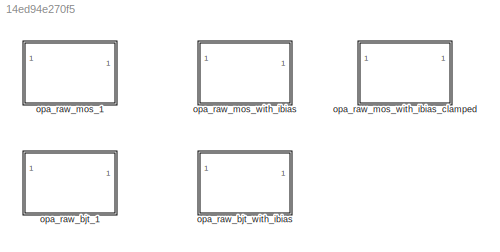
MODEL slx_14ed94e270f5
KIND library
CONFIG AbsTol = auto
CONFIG EnableMultiTasking = off
CONFIG FixedStep = auto
CONFIG MaxStep = auto
CONFIG MinStep = auto
CONFIG RelTol = 1e-3
CONFIG SampleTimeConstraint = Unconstrained
CONFIG SolverName = VariableStepAuto
CONFIG StartTime = 0.0
CONFIG StopTime = 10.0
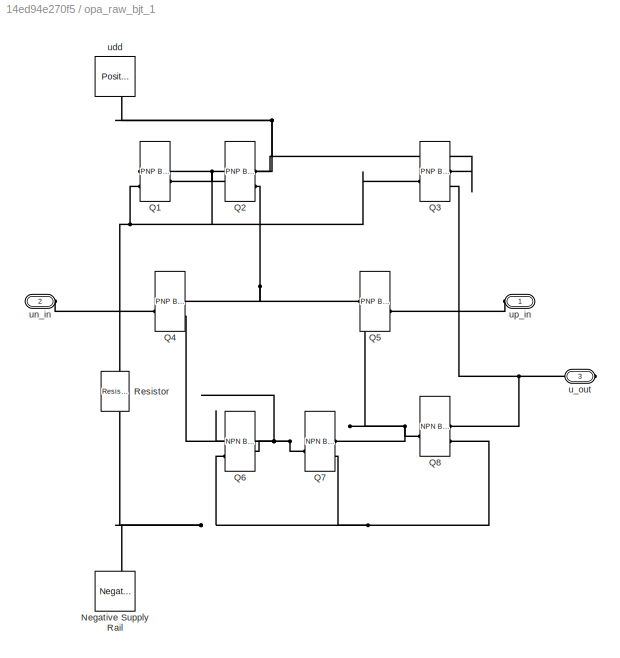
BLOCK [SubSystem] opa_raw_bjt_1
BLOCK [Reference] opa_raw_bjt_1/Negative Supply Rail  REF=ee_lib/Sources/Negative Supply Rail
  NameLocation = right
  SourceBlock = ee_lib/Sources/Negative Supply Rail
  SourceType = Negative Supply Rail
BLOCK [Reference] opa_raw_bjt_1/Q1  REF=ee_lib/Semiconductors &
Converters/PNP Bipolar
Transistor
  SourceBlock = ee_lib/Semiconductors &\nConverters/PNP Bipolar\nTransistor
  SourceType = PNP Bipolar\nTransistor
BLOCK [Reference] opa_raw_bjt_1/Q2  REF=ee_lib/Semiconductors &
Converters/PNP Bipolar
Transistor
  SourceBlock = ee_lib/Semiconductors &\nConverters/PNP Bipolar\nTransistor
  SourceType = PNP Bipolar\nTransistor
BLOCK [Reference] opa_raw_bjt_1/Q3  REF=ee_lib/Semiconductors &
Converters/PNP Bipolar
Transistor
  SourceBlock = ee_lib/Semiconductors &\nConverters/PNP Bipolar\nTransistor
  SourceType = PNP Bipolar\nTransistor
BLOCK [Reference] opa_raw_bjt_1/Q4  REF=ee_lib/Semiconductors &
Converters/PNP Bipolar
Transistor
  SourceBlock = ee_lib/Semiconductors &\nConverters/PNP Bipolar\nTransistor
  SourceType = PNP Bipolar\nTransistor
BLOCK [Reference] opa_raw_bjt_1/Q5  REF=ee_lib/Semiconductors &
Converters/PNP Bipolar
Transistor
  SourceBlock = ee_lib/Semiconductors &\nConverters/PNP Bipolar\nTransistor
  SourceType = PNP Bipolar\nTransistor
BLOCK [Reference] opa_raw_bjt_1/Q6  REF=ee_lib/Semiconductors &
Converters/NPN Bipolar
Transistor
  SourceBlock = ee_lib/Semiconductors &\nConverters/NPN Bipolar\nTransistor
  SourceType = NPN Bipolar\nTransistor
BLOCK [Reference] opa_raw_bjt_1/Q7  REF=ee_lib/Semiconductors &
Converters/NPN Bipolar
Transistor
  SourceBlock = ee_lib/Semiconductors &\nConverters/NPN Bipolar\nTransistor
  SourceType = NPN Bipolar\nTransistor
BLOCK [Reference] opa_raw_bjt_1/Q8  REF=ee_lib/Semiconductors &
Converters/NPN Bipolar
Transistor
  SourceBlock = ee_lib/Semiconductors &\nConverters/NPN Bipolar\nTransistor
  SourceType = NPN Bipolar\nTransistor
BLOCK [Reference] opa_raw_bjt_1/Resistor  REF=fl_lib/Electrical/Electrical Elements/Resistor
  NameLocation = left
  SourceBlock = fl_lib/Electrical/Electrical Elements/Resistor
  SourceType = Resistor
BLOCK [PMIOPort] opa_raw_bjt_1/u_out
  Port = 3
  Side = Right
BLOCK [Reference] opa_raw_bjt_1/udd  REF=ee_lib/Sources/Positive Supply Rail
  NameLocation = right
  SourceBlock = ee_lib/Sources/Positive Supply Rail
  SourceType = Positive Supply Rail
BLOCK [PMIOPort] opa_raw_bjt_1/un_in
  NameLocation = top
  Port = 2
  Side = Left
BLOCK [PMIOPort] opa_raw_bjt_1/up_in
  NameLocation = top
  Side = Left
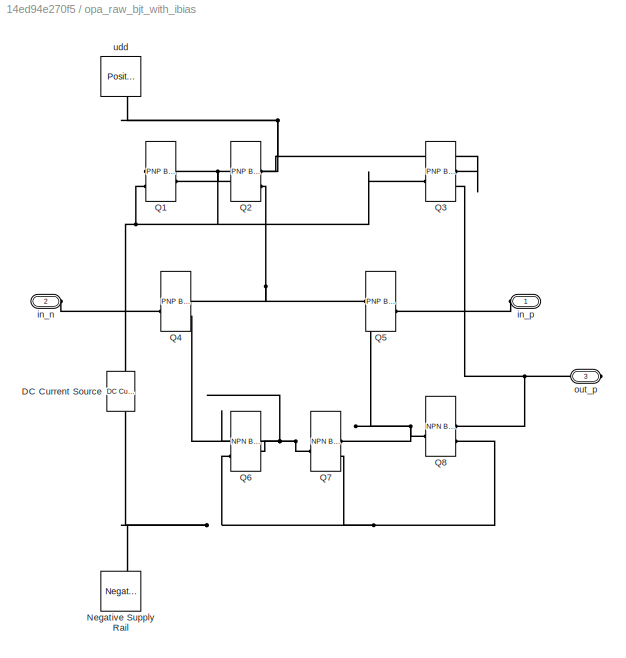
BLOCK [SubSystem] opa_raw_bjt_with_ibias
BLOCK [Reference] opa_raw_bjt_with_ibias/DC Current Source  REF=fl_lib/Electrical/Electrical Sources/DC Current Source
  NameLocation = left
  SourceBlock = fl_lib/Electrical/Electrical Sources/DC Current Source
  SourceType = DC Current Source
BLOCK [Reference] opa_raw_bjt_with_ibias/Negative Supply Rail  REF=ee_lib/Sources/Negative Supply Rail
  NameLocation = right
  SourceBlock = ee_lib/Sources/Negative Supply Rail
  SourceType = Negative Supply Rail
BLOCK [Reference] opa_raw_bjt_with_ibias/Q1  REF=ee_lib/Semiconductors &
Converters/PNP Bipolar
Transistor
  SourceBlock = ee_lib/Semiconductors &\nConverters/PNP Bipolar\nTransistor
  SourceType = PNP Bipolar\nTransistor
BLOCK [Reference] opa_raw_bjt_with_ibias/Q2  REF=ee_lib/Semiconductors &
Converters/PNP Bipolar
Transistor
  SourceBlock = ee_lib/Semiconductors &\nConverters/PNP Bipolar\nTransistor
  SourceType = PNP Bipolar\nTransistor
BLOCK [Reference] opa_raw_bjt_with_ibias/Q3  REF=ee_lib/Semiconductors &
Converters/PNP Bipolar
Transistor
  SourceBlock = ee_lib/Semiconductors &\nConverters/PNP Bipolar\nTransistor
  SourceType = PNP Bipolar\nTransistor
BLOCK [Reference] opa_raw_bjt_with_ibias/Q4  REF=ee_lib/Semiconductors &
Converters/PNP Bipolar
Transistor
  SourceBlock = ee_lib/Semiconductors &\nConverters/PNP Bipolar\nTransistor
  SourceType = PNP Bipolar\nTransistor
BLOCK [Reference] opa_raw_bjt_with_ibias/Q5  REF=ee_lib/Semiconductors &
Converters/PNP Bipolar
Transistor
  SourceBlock = ee_lib/Semiconductors &\nConverters/PNP Bipolar\nTransistor
  SourceType = PNP Bipolar\nTransistor
BLOCK [Reference] opa_raw_bjt_with_ibias/Q6  REF=ee_lib/Semiconductors &
Converters/NPN Bipolar
Transistor
  SourceBlock = ee_lib/Semiconductors &\nConverters/NPN Bipolar\nTransistor
  SourceType = NPN Bipolar\nTransistor
BLOCK [Reference] opa_raw_bjt_with_ibias/Q7  REF=ee_lib/Semiconductors &
Converters/NPN Bipolar
Transistor
  SourceBlock = ee_lib/Semiconductors &\nConverters/NPN Bipolar\nTransistor
  SourceType = NPN Bipolar\nTransistor
BLOCK [Reference] opa_raw_bjt_with_ibias/Q8  REF=ee_lib/Semiconductors &
Converters/NPN Bipolar
Transistor
  SourceBlock = ee_lib/Semiconductors &\nConverters/NPN Bipolar\nTransistor
  SourceType = NPN Bipolar\nTransistor
BLOCK [PMIOPort] opa_raw_bjt_with_ibias/in_n
  NameLocation = top
  Port = 2
  Side = Left
BLOCK [PMIOPort] opa_raw_bjt_with_ibias/in_p
  NameLocation = top
  Side = Left
BLOCK [PMIOPort] opa_raw_bjt_with_ibias/out_p
  Port = 3
  Side = Right
BLOCK [Reference] opa_raw_bjt_with_ibias/udd  REF=ee_lib/Sources/Positive Supply Rail
  NameLocation = right
  SourceBlock = ee_lib/Sources/Positive Supply Rail
  SourceType = Positive Supply Rail
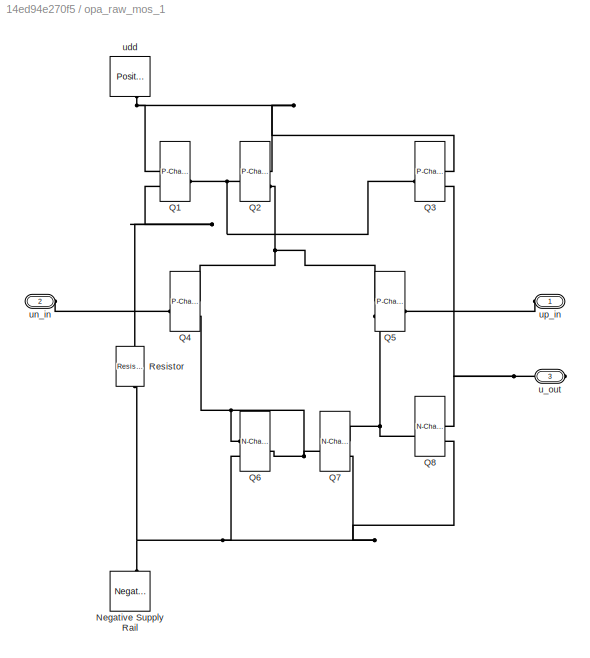
BLOCK [SubSystem] opa_raw_mos_1
BLOCK [Reference] opa_raw_mos_1/Negative Supply Rail  REF=ee_lib/Sources/Negative Supply Rail
  NameLocation = right
  SourceBlock = ee_lib/Sources/Negative Supply Rail
  SourceType = Negative Supply Rail
BLOCK [Reference] opa_raw_mos_1/Q1  REF=ee_lib/Semiconductors &
Converters/P-Channel MOSFET
  SourceBlock = ee_lib/Semiconductors &\nConverters/P-Channel MOSFET
  SourceType = P-Channel MOSFET
BLOCK [Reference] opa_raw_mos_1/Q2  REF=ee_lib/Semiconductors &
Converters/P-Channel MOSFET
  SourceBlock = ee_lib/Semiconductors &\nConverters/P-Channel MOSFET
  SourceType = P-Channel MOSFET
BLOCK [Reference] opa_raw_mos_1/Q3  REF=ee_lib/Semiconductors &
Converters/P-Channel MOSFET
  SourceBlock = ee_lib/Semiconductors &\nConverters/P-Channel MOSFET
  SourceType = P-Channel MOSFET
BLOCK [Reference] opa_raw_mos_1/Q4  REF=ee_lib/Semiconductors &
Converters/P-Channel MOSFET
  SourceBlock = ee_lib/Semiconductors &\nConverters/P-Channel MOSFET
  SourceType = P-Channel MOSFET
BLOCK [Reference] opa_raw_mos_1/Q5  REF=ee_lib/Semiconductors &
Converters/P-Channel MOSFET
  SourceBlock = ee_lib/Semiconductors &\nConverters/P-Channel MOSFET
  SourceType = P-Channel MOSFET
BLOCK [Reference] opa_raw_mos_1/Q6  REF=ee_lib/Semiconductors &
Converters/N-Channel MOSFET
  SourceBlock = ee_lib/Semiconductors &\nConverters/N-Channel MOSFET
  SourceType = N-Channel MOSFET
BLOCK [Reference] opa_raw_mos_1/Q7  REF=ee_lib/Semiconductors &
Converters/N-Channel MOSFET
  SourceBlock = ee_lib/Semiconductors &\nConverters/N-Channel MOSFET
  SourceType = N-Channel MOSFET
BLOCK [Reference] opa_raw_mos_1/Q8  REF=ee_lib/Semiconductors &
Converters/N-Channel MOSFET
  SourceBlock = ee_lib/Semiconductors &\nConverters/N-Channel MOSFET
  SourceType = N-Channel MOSFET
BLOCK [Reference] opa_raw_mos_1/Resistor  REF=fl_lib/Electrical/Electrical Elements/Resistor
  NameLocation = left
  SourceBlock = fl_lib/Electrical/Electrical Elements/Resistor
  SourceType = Resistor
BLOCK [PMIOPort] opa_raw_mos_1/u_out
  Port = 3
  Side = Right
BLOCK [Reference] opa_raw_mos_1/udd  REF=ee_lib/Sources/Positive Supply Rail
  NameLocation = right
  SourceBlock = ee_lib/Sources/Positive Supply Rail
  SourceType = Positive Supply Rail
BLOCK [PMIOPort] opa_raw_mos_1/un_in
  NameLocation = top
  Port = 2
  Side = Left
BLOCK [PMIOPort] opa_raw_mos_1/up_in
  NameLocation = right
  Side = Left
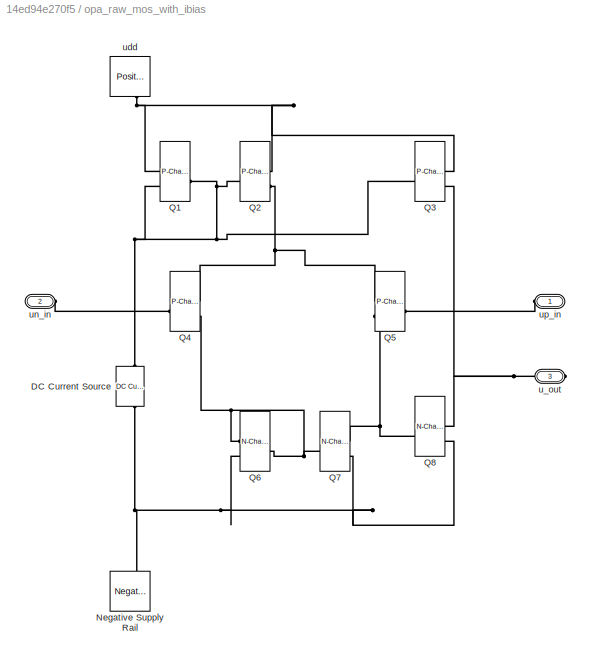
BLOCK [SubSystem] opa_raw_mos_with_ibias
BLOCK [Reference] opa_raw_mos_with_ibias/DC Current Source  REF=fl_lib/Electrical/Electrical Sources/DC Current Source
  NameLocation = left
  SourceBlock = fl_lib/Electrical/Electrical Sources/DC Current Source
  SourceType = DC Current Source
BLOCK [Reference] opa_raw_mos_with_ibias/Negative Supply Rail  REF=ee_lib/Sources/Negative Supply Rail
  NameLocation = right
  SourceBlock = ee_lib/Sources/Negative Supply Rail
  SourceType = Negative Supply Rail
BLOCK [Reference] opa_raw_mos_with_ibias/Q1  REF=ee_lib/Semiconductors &
Converters/P-Channel MOSFET
  SourceBlock = ee_lib/Semiconductors &\nConverters/P-Channel MOSFET
  SourceType = P-Channel MOSFET
BLOCK [Reference] opa_raw_mos_with_ibias/Q2  REF=ee_lib/Semiconductors &
Converters/P-Channel MOSFET
  SourceBlock = ee_lib/Semiconductors &\nConverters/P-Channel MOSFET
  SourceType = P-Channel MOSFET
BLOCK [Reference] opa_raw_mos_with_ibias/Q3  REF=ee_lib/Semiconductors &
Converters/P-Channel MOSFET
  SourceBlock = ee_lib/Semiconductors &\nConverters/P-Channel MOSFET
  SourceType = P-Channel MOSFET
BLOCK [Reference] opa_raw_mos_with_ibias/Q4  REF=ee_lib/Semiconductors &
Converters/P-Channel MOSFET
  SourceBlock = ee_lib/Semiconductors &\nConverters/P-Channel MOSFET
  SourceType = P-Channel MOSFET
BLOCK [Reference] opa_raw_mos_with_ibias/Q5  REF=ee_lib/Semiconductors &
Converters/P-Channel MOSFET
  SourceBlock = ee_lib/Semiconductors &\nConverters/P-Channel MOSFET
  SourceType = P-Channel MOSFET
BLOCK [Reference] opa_raw_mos_with_ibias/Q6  REF=ee_lib/Semiconductors &
Converters/N-Channel MOSFET
  SourceBlock = ee_lib/Semiconductors &\nConverters/N-Channel MOSFET
  SourceType = N-Channel MOSFET
BLOCK [Reference] opa_raw_mos_with_ibias/Q7  REF=ee_lib/Semiconductors &
Converters/N-Channel MOSFET
  SourceBlock = ee_lib/Semiconductors &\nConverters/N-Channel MOSFET
  SourceType = N-Channel MOSFET
BLOCK [Reference] opa_raw_mos_with_ibias/Q8  REF=ee_lib/Semiconductors &
Converters/N-Channel MOSFET
  SourceBlock = ee_lib/Semiconductors &\nConverters/N-Channel MOSFET
  SourceType = N-Channel MOSFET
BLOCK [PMIOPort] opa_raw_mos_with_ibias/u_out
  Port = 3
  Side = Right
BLOCK [Reference] opa_raw_mos_with_ibias/udd  REF=ee_lib/Sources/Positive Supply Rail
  NameLocation = right
  SourceBlock = ee_lib/Sources/Positive Supply Rail
  SourceType = Positive Supply Rail
BLOCK [PMIOPort] opa_raw_mos_with_ibias/un_in
  NameLocation = top
  Port = 2
  Side = Left
BLOCK [PMIOPort] opa_raw_mos_with_ibias/up_in
  NameLocation = right
  Side = Left
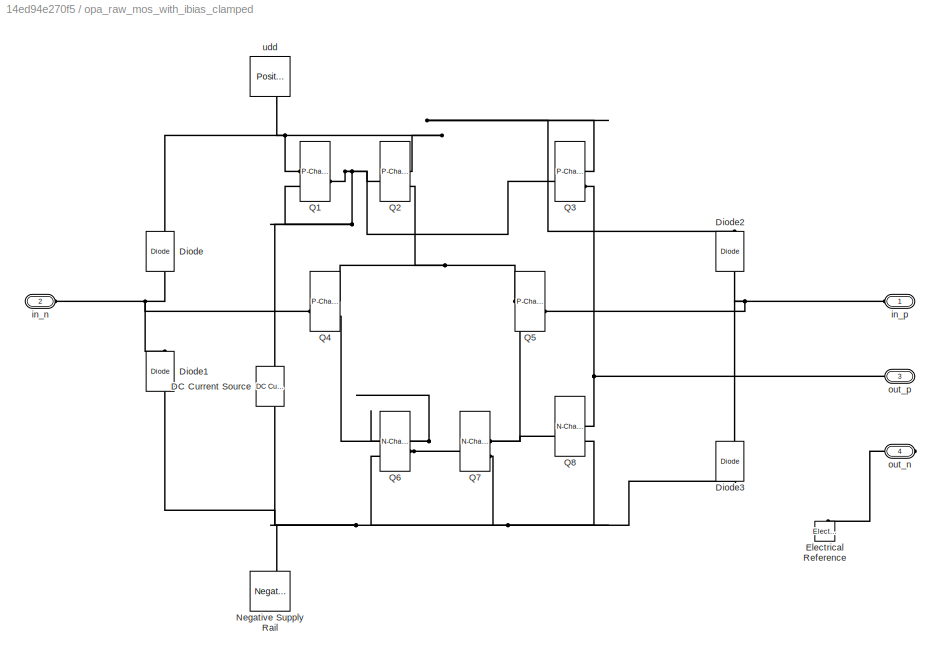
BLOCK [SubSystem] opa_raw_mos_with_ibias_clamped
BLOCK [Reference] opa_raw_mos_with_ibias_clamped/DC Current Source  REF=fl_lib/Electrical/Electrical Sources/DC Current Source
  NameLocation = left
  SourceBlock = fl_lib/Electrical/Electrical Sources/DC Current Source
  SourceType = DC Current Source
BLOCK [Reference] opa_raw_mos_with_ibias_clamped/Diode  REF=fl_lib/Electrical/Electrical Elements/Diode
  NameLocation = right
  SourceBlock = fl_lib/Electrical/Electrical Elements/Diode
  SourceType = Diode
BLOCK [Reference] opa_raw_mos_with_ibias_clamped/Diode1  REF=fl_lib/Electrical/Electrical Elements/Diode
  NameLocation = right
  SourceBlock = fl_lib/Electrical/Electrical Elements/Diode
  SourceType = Diode
BLOCK [Reference] opa_raw_mos_with_ibias_clamped/Diode2  REF=fl_lib/Electrical/Electrical Elements/Diode
  NameLocation = right
  SourceBlock = fl_lib/Electrical/Electrical Elements/Diode
  SourceType = Diode
BLOCK [Reference] opa_raw_mos_with_ibias_clamped/Diode3  REF=fl_lib/Electrical/Electrical Elements/Diode
  NameLocation = right
  SourceBlock = fl_lib/Electrical/Electrical Elements/Diode
  SourceType = Diode
BLOCK [Reference] opa_raw_mos_with_ibias_clamped/Electrical Reference  REF=fl_lib/Electrical/Electrical Elements/Electrical Reference
  NameLocation = right
  SourceBlock = fl_lib/Electrical/Electrical Elements/Electrical Reference
  SourceType = Electrical Reference
BLOCK [Reference] opa_raw_mos_with_ibias_clamped/Negative Supply Rail  REF=ee_lib/Sources/Negative Supply Rail
  NameLocation = right
  SourceBlock = ee_lib/Sources/Negative Supply Rail
  SourceType = Negative Supply Rail
BLOCK [Reference] opa_raw_mos_with_ibias_clamped/Q1  REF=ee_lib/Semiconductors &
Converters/P-Channel MOSFET
  SourceBlock = ee_lib/Semiconductors &\nConverters/P-Channel MOSFET
  SourceType = P-Channel MOSFET
BLOCK [Reference] opa_raw_mos_with_ibias_clamped/Q2  REF=ee_lib/Semiconductors &
Converters/P-Channel MOSFET
  SourceBlock = ee_lib/Semiconductors &\nConverters/P-Channel MOSFET
  SourceType = P-Channel MOSFET
BLOCK [Reference] opa_raw_mos_with_ibias_clamped/Q3  REF=ee_lib/Semiconductors &
Converters/P-Channel MOSFET
  SourceBlock = ee_lib/Semiconductors &\nConverters/P-Channel MOSFET
  SourceType = P-Channel MOSFET
BLOCK [Reference] opa_raw_mos_with_ibias_clamped/Q4  REF=ee_lib/Semiconductors &
Converters/P-Channel MOSFET
  SourceBlock = ee_lib/Semiconductors &\nConverters/P-Channel MOSFET
  SourceType = P-Channel MOSFET
BLOCK [Reference] opa_raw_mos_with_ibias_clamped/Q5  REF=ee_lib/Semiconductors &
Converters/P-Channel MOSFET
  SourceBlock = ee_lib/Semiconductors &\nConverters/P-Channel MOSFET
  SourceType = P-Channel MOSFET
BLOCK [Reference] opa_raw_mos_with_ibias_clamped/Q6  REF=ee_lib/Semiconductors &
Converters/N-Channel MOSFET
  SourceBlock = ee_lib/Semiconductors &\nConverters/N-Channel MOSFET
  SourceType = N-Channel MOSFET
BLOCK [Reference] opa_raw_mos_with_ibias_clamped/Q7  REF=ee_lib/Semiconductors &
Converters/N-Channel MOSFET
  SourceBlock = ee_lib/Semiconductors &\nConverters/N-Channel MOSFET
  SourceType = N-Channel MOSFET
BLOCK [Reference] opa_raw_mos_with_ibias_clamped/Q8  REF=ee_lib/Semiconductors &
Converters/N-Channel MOSFET
  SourceBlock = ee_lib/Semiconductors &\nConverters/N-Channel MOSFET
  SourceType = N-Channel MOSFET
BLOCK [PMIOPort] opa_raw_mos_with_ibias_clamped/in_n
  Port = 2
  Side = Left
BLOCK [PMIOPort] opa_raw_mos_with_ibias_clamped/in_p
  NameLocation = right
  Side = Left
BLOCK [PMIOPort] opa_raw_mos_with_ibias_clamped/out_n
  Port = 4
  Side = Right
BLOCK [PMIOPort] opa_raw_mos_with_ibias_clamped/out_p
  Port = 3
  Side = Right
BLOCK [Reference] opa_raw_mos_with_ibias_clamped/udd  REF=ee_lib/Sources/Positive Supply Rail
  NameLocation = right
  SourceBlock = ee_lib/Sources/Positive Supply Rail
  SourceType = Positive Supply Rail
PNET net1: opa_raw_bjt_1/Negative Supply Rail:LConn1 -- opa_raw_bjt_1/Q6:RConn2 -- opa_raw_bjt_1/Q7:RConn2 -- opa_raw_bjt_1/Q8:RConn2 -- opa_raw_bjt_1/Resistor:RConn1
PNET net2: opa_raw_bjt_1/Q1:LConn1 -- opa_raw_bjt_1/Q1:RConn2 -- opa_raw_bjt_1/Q2:LConn1 -- opa_raw_bjt_1/Q3:LConn1 -- opa_raw_bjt_1/Resistor:LConn1
PNET net3: opa_raw_bjt_1/Q1:RConn1 -- opa_raw_bjt_1/Q2:RConn1 -- opa_raw_bjt_1/Q3:RConn1 -- opa_raw_bjt_1/udd:RConn1
PNET net4: opa_raw_bjt_1/Q2:RConn2 -- opa_raw_bjt_1/Q4:RConn1 -- opa_raw_bjt_1/Q5:RConn1
PNET net5: opa_raw_bjt_1/Q3:RConn2 -- opa_raw_bjt_1/Q8:RConn1 -- opa_raw_bjt_1/u_out:RConn1
PLINE opa_raw_bjt_1/Q4:LConn1 -- opa_raw_bjt_1/un_in:RConn1
PNET net6: opa_raw_bjt_1/Q4:RConn2 -- opa_raw_bjt_1/Q6:LConn1 -- opa_raw_bjt_1/Q6:RConn1 -- opa_raw_bjt_1/Q7:LConn1
PLINE opa_raw_bjt_1/Q5:LConn1 -- opa_raw_bjt_1/up_in:RConn1
PNET net7: opa_raw_bjt_1/Q5:RConn2 -- opa_raw_bjt_1/Q7:RConn1 -- opa_raw_bjt_1/Q8:LConn1
PNET net8: opa_raw_bjt_with_ibias/DC Current Source:LConn1 -- opa_raw_bjt_with_ibias/Negative Supply Rail:LConn1 -- opa_raw_bjt_with_ibias/Q6:RConn2 -- opa_raw_bjt_with_ibias/Q7:RConn2 -- opa_raw_bjt_with_ibias/Q8:RConn2
PNET net9: opa_raw_bjt_with_ibias/DC Current Source:RConn1 -- opa_raw_bjt_with_ibias/Q1:LConn1 -- opa_raw_bjt_with_ibias/Q1:RConn2 -- opa_raw_bjt_with_ibias/Q2:LConn1 -- opa_raw_bjt_with_ibias/Q3:LConn1
PNET net10: opa_raw_bjt_with_ibias/Q1:RConn1 -- opa_raw_bjt_with_ibias/Q2:RConn1 -- opa_raw_bjt_with_ibias/Q3:RConn1 -- opa_raw_bjt_with_ibias/udd:RConn1
PNET net11: opa_raw_bjt_with_ibias/Q2:RConn2 -- opa_raw_bjt_with_ibias/Q4:RConn1 -- opa_raw_bjt_with_ibias/Q5:RConn1
PNET net12: opa_raw_bjt_with_ibias/Q3:RConn2 -- opa_raw_bjt_with_ibias/Q8:RConn1 -- opa_raw_bjt_with_ibias/out_p:RConn1
PLINE opa_raw_bjt_with_ibias/Q4:LConn1 -- opa_raw_bjt_with_ibias/in_n:RConn1
PNET net13: opa_raw_bjt_with_ibias/Q4:RConn2 -- opa_raw_bjt_with_ibias/Q6:LConn1 -- opa_raw_bjt_with_ibias/Q6:RConn1 -- opa_raw_bjt_with_ibias/Q7:LConn1
PLINE opa_raw_bjt_with_ibias/Q5:LConn1 -- opa_raw_bjt_with_ibias/in_p:RConn1
PNET net14: opa_raw_bjt_with_ibias/Q5:RConn2 -- opa_raw_bjt_with_ibias/Q7:RConn1 -- opa_raw_bjt_with_ibias/Q8:LConn1
PNET net15: opa_raw_mos_1/Negative Supply Rail:LConn1 -- opa_raw_mos_1/Q6:RConn2 -- opa_raw_mos_1/Q7:RConn2 -- opa_raw_mos_1/Q8:RConn2 -- opa_raw_mos_1/Resistor:RConn1
PNET net16: opa_raw_mos_1/Q1:LConn1 -- opa_raw_mos_1/Q1:RConn2 -- opa_raw_mos_1/Q2:LConn1 -- opa_raw_mos_1/Q3:LConn1 -- opa_raw_mos_1/Resistor:LConn1
PNET net17: opa_raw_mos_1/Q1:RConn1 -- opa_raw_mos_1/Q2:RConn1 -- opa_raw_mos_1/Q3:RConn1 -- opa_raw_mos_1/udd:RConn1
PNET net18: opa_raw_mos_1/Q2:RConn2 -- opa_raw_mos_1/Q4:RConn1 -- opa_raw_mos_1/Q5:RConn1
PNET net19: opa_raw_mos_1/Q3:RConn2 -- opa_raw_mos_1/Q8:RConn1 -- opa_raw_mos_1/u_out:RConn1
PLINE opa_raw_mos_1/Q4:LConn1 -- opa_raw_mos_1/un_in:RConn1
PNET net20: opa_raw_mos_1/Q4:RConn2 -- opa_raw_mos_1/Q6:LConn1 -- opa_raw_mos_1/Q6:RConn1 -- opa_raw_mos_1/Q7:LConn1
PLINE opa_raw_mos_1/Q5:LConn1 -- opa_raw_mos_1/up_in:RConn1
PNET net21: opa_raw_mos_1/Q5:RConn2 -- opa_raw_mos_1/Q7:RConn1 -- opa_raw_mos_1/Q8:LConn1
PNET net22: opa_raw_mos_with_ibias/DC Current Source:LConn1 -- opa_raw_mos_with_ibias/Negative Supply Rail:LConn1 -- opa_raw_mos_with_ibias/Q6:RConn2 -- opa_raw_mos_with_ibias/Q7:RConn2 -- opa_raw_mos_with_ibias/Q8:RConn2
PNET net23: opa_raw_mos_with_ibias/DC Current Source:RConn1 -- opa_raw_mos_with_ibias/Q1:LConn1 -- opa_raw_mos_with_ibias/Q1:RConn2 -- opa_raw_mos_with_ibias/Q2:LConn1 -- opa_raw_mos_with_ibias/Q3:LConn1
PNET net24: opa_raw_mos_with_ibias/Q1:RConn1 -- opa_raw_mos_with_ibias/Q2:RConn1 -- opa_raw_mos_with_ibias/Q3:RConn1 -- opa_raw_mos_with_ibias/udd:RConn1
PNET net25: opa_raw_mos_with_ibias/Q2:RConn2 -- opa_raw_mos_with_ibias/Q4:RConn1 -- opa_raw_mos_with_ibias/Q5:RConn1
PNET net26: opa_raw_mos_with_ibias/Q3:RConn2 -- opa_raw_mos_with_ibias/Q8:RConn1 -- opa_raw_mos_with_ibias/u_out:RConn1
PLINE opa_raw_mos_with_ibias/Q4:LConn1 -- opa_raw_mos_with_ibias/un_in:RConn1
PNET net27: opa_raw_mos_with_ibias/Q4:RConn2 -- opa_raw_mos_with_ibias/Q6:LConn1 -- opa_raw_mos_with_ibias/Q6:RConn1 -- opa_raw_mos_with_ibias/Q7:LConn1
PLINE opa_raw_mos_with_ibias/Q5:LConn1 -- opa_raw_mos_with_ibias/up_in:RConn1
PNET net28: opa_raw_mos_with_ibias/Q5:RConn2 -- opa_raw_mos_with_ibias/Q7:RConn1 -- opa_raw_mos_with_ibias/Q8:LConn1
PNET net29: opa_raw_mos_with_ibias_clamped/DC Current Source:LConn1 -- opa_raw_mos_with_ibias_clamped/Diode1:LConn1 -- opa_raw_mos_with_ibias_clamped/Diode3:LConn1 -- opa_raw_mos_with_ibias_clamped/Negative Supply Rail:LConn1 -- opa_raw_mos_with_ibias_clamped/Q6:RConn2 -- opa_raw_mos_with_ibias_clamped/Q7:RConn2 -- opa_raw_mos_with_ibias_clamped/Q8:RConn2
PNET net30: opa_raw_mos_with_ibias_clamped/DC Current Source:RConn1 -- opa_raw_mos_with_ibias_clamped/Q1:LConn1 -- opa_raw_mos_with_ibias_clamped/Q1:RConn2 -- opa_raw_mos_with_ibias_clamped/Q2:LConn1 -- opa_raw_mos_with_ibias_clamped/Q3:LConn1
PNET net31: opa_raw_mos_with_ibias_clamped/Diode1:RConn1 -- opa_raw_mos_with_ibias_clamped/Diode:LConn1 -- opa_raw_mos_with_ibias_clamped/Q4:LConn1 -- opa_raw_mos_with_ibias_clamped/in_n:RConn1
PNET net32: opa_raw_mos_with_ibias_clamped/Diode2:LConn1 -- opa_raw_mos_with_ibias_clamped/Diode3:RConn1 -- opa_raw_mos_with_ibias_clamped/Q5:LConn1 -- opa_raw_mos_with_ibias_clamped/in_p:RConn1
PNET net33: opa_raw_mos_with_ibias_clamped/Diode2:RConn1 -- opa_raw_mos_with_ibias_clamped/Diode:RConn1 -- opa_raw_mos_with_ibias_clamped/Q1:RConn1 -- opa_raw_mos_with_ibias_clamped/Q2:RConn1 -- opa_raw_mos_with_ibias_clamped/Q3:RConn1 -- opa_raw_mos_with_ibias_clamped/udd:RConn1
PLINE opa_raw_mos_with_ibias_clamped/Electrical Reference:LConn1 -- opa_raw_mos_with_ibias_clamped/out_n:RConn1
PNET net34: opa_raw_mos_with_ibias_clamped/Q2:RConn2 -- opa_raw_mos_with_ibias_clamped/Q4:RConn1 -- opa_raw_mos_with_ibias_clamped/Q5:RConn1
PNET net35: opa_raw_mos_with_ibias_clamped/Q3:RConn2 -- opa_raw_mos_with_ibias_clamped/Q8:RConn1 -- opa_raw_mos_with_ibias_clamped/out_p:RConn1
PNET net36: opa_raw_mos_with_ibias_clamped/Q4:RConn2 -- opa_raw_mos_with_ibias_clamped/Q6:LConn1 -- opa_raw_mos_with_ibias_clamped/Q6:RConn1 -- opa_raw_mos_with_ibias_clamped/Q7:LConn1
PNET net37: opa_raw_mos_with_ibias_clamped/Q5:RConn2 -- opa_raw_mos_with_ibias_clamped/Q7:RConn1 -- opa_raw_mos_with_ibias_clamped/Q8:LConn1
note: PNET lines group multi-terminal physical nets as a canonical sorted terminal list (undirected conserving connections); 2-terminal nets keep the pairwise PLINE form
